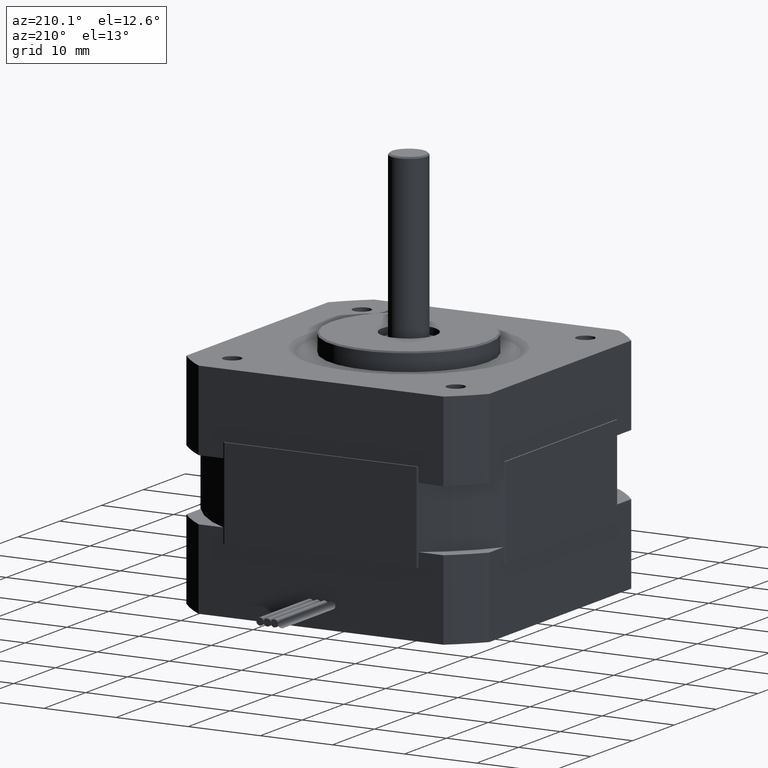
[diagram: clean part render]
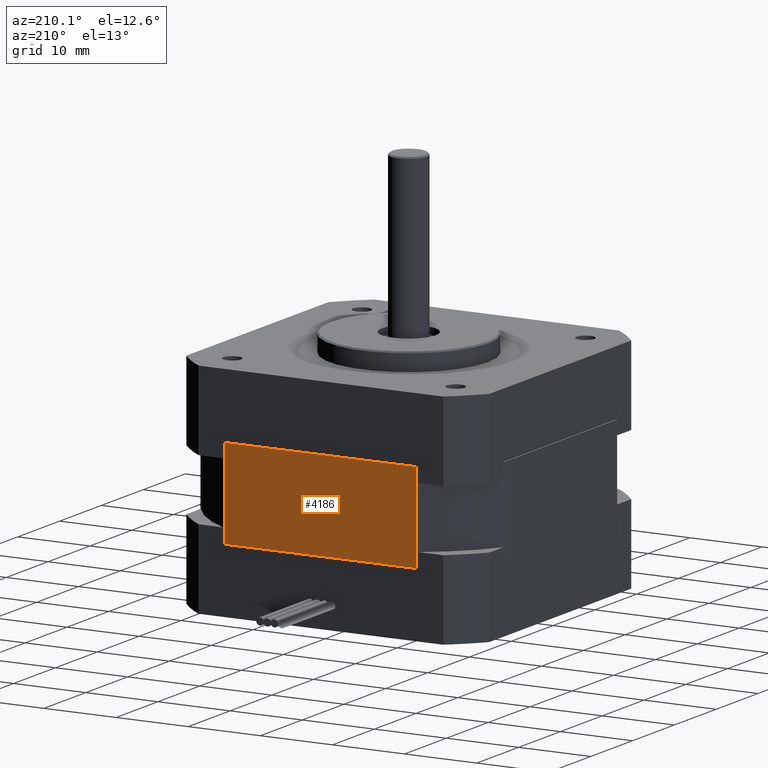
[diagram: same view with one face highlighted and labeled with its STEP entity id]
A machine part, auxiliary view. The second image highlights one B-rep face of the part: STEP entity #4186.
In plain terms, the highlighted planar face has unit normal (-0, 1, 0).
Its self-contained STEP definition (entity closure, byte-faithful):
#345=LINE('',#7295,#593);
#353=LINE('',#7317,#601);
#354=LINE('',#7320,#602);
#355=LINE('',#7321,#603);
#593=VECTOR('',#5926,10.);
#601=VECTOR('',#5950,10.);
#602=VECTOR('',#5953,10.);
#603=VECTOR('',#5954,10.);
#734=PLANE('',#4704);
#1116=FACE_OUTER_BOUND('',#1450,.T.);
#1450=EDGE_LOOP('',(#3734,#3735,#3736,#3737));
#2060=VERTEX_POINT('',#7281);
#2066=VERTEX_POINT('',#7293);
#2072=VERTEX_POINT('',#7315);
#2073=VERTEX_POINT('',#7319);
#2618=EDGE_CURVE('',#2060,#2066,#345,.T.);
#2629=EDGE_CURVE('',#2072,#2066,#353,.T.);
#2630=EDGE_CURVE('',#2072,#2073,#354,.T.);
#2631=EDGE_CURVE('',#2073,#2060,#355,.T.);
#3734=ORIENTED_EDGE('',*,*,#2630,.T.);
#3735=ORIENTED_EDGE('',*,*,#2631,.T.);
#3736=ORIENTED_EDGE('',*,*,#2618,.T.);
#3737=ORIENTED_EDGE('',*,*,#2629,.F.);
#4186=ADVANCED_FACE('',(#1116),#734,.T.);
#4704=AXIS2_PLACEMENT_3D('',#7318,#5951,#5952);
#5926=DIRECTION('',(-1.,-4.44277159917939E-16,9.4368957093138E-16));
#5950=DIRECTION('',(-9.4368957093138E-16,2.46519032881584E-32,-1.));
#5951=DIRECTION('center_axis',(-4.44277159917939E-16,1.,4.4391162570573E-31));
#5952=DIRECTION('ref_axis',(8.88178419700125E-16,0.,1.));
#5953=DIRECTION('',(1.,4.44277159917939E-16,-9.4368957093138E-16));
#5954=DIRECTION('',(-9.4368957093138E-16,2.46519032881584E-32,-1.));
#7281=CARTESIAN_POINT('',(13.3295723862395,21.15,-15.5000000000001));
#7293=CARTESIAN_POINT('',(-13.3295723862396,21.15,-15.5000000000001));
#7295=CARTESIAN_POINT('',(-13.3295723862396,21.15,-15.5000000000001));
#7315=CARTESIAN_POINT('',(-13.3295723862396,21.15,-3.00000000000006));
#7317=CARTESIAN_POINT('',(-13.3295723862396,21.15,-9.25000000000006));
#7318=CARTESIAN_POINT('Origin',(-13.3295723862396,21.15,-9.25000000000006));
#7319=CARTESIAN_POINT('',(13.3295723862395,21.15,-3.00000000000008));
#7320=CARTESIAN_POINT('',(-13.3295723862396,21.15,-3.00000000000006));
#7321=CARTESIAN_POINT('',(13.3295723862395,21.15,-9.25000000000008));